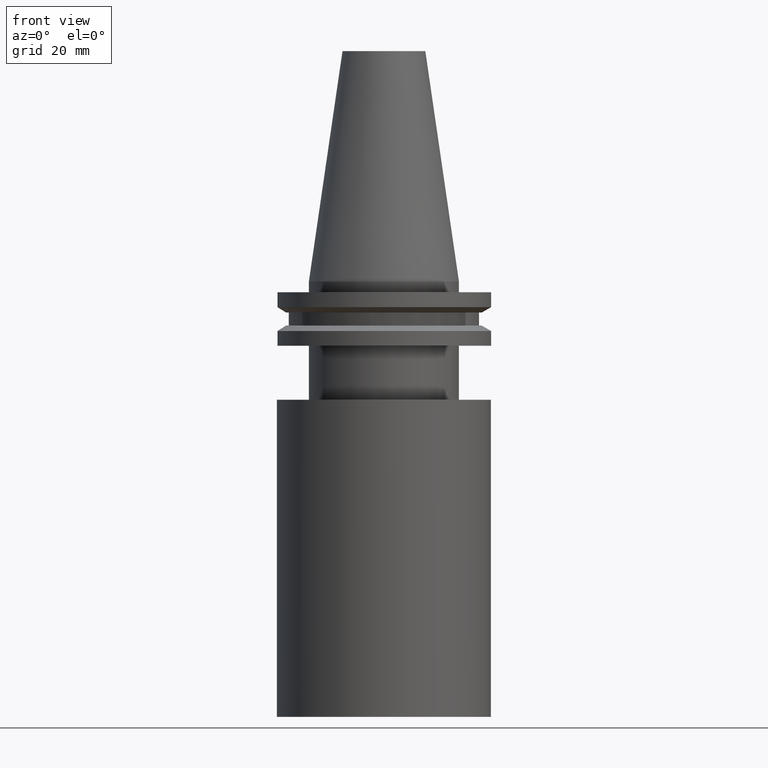
[diagram: clean part render]
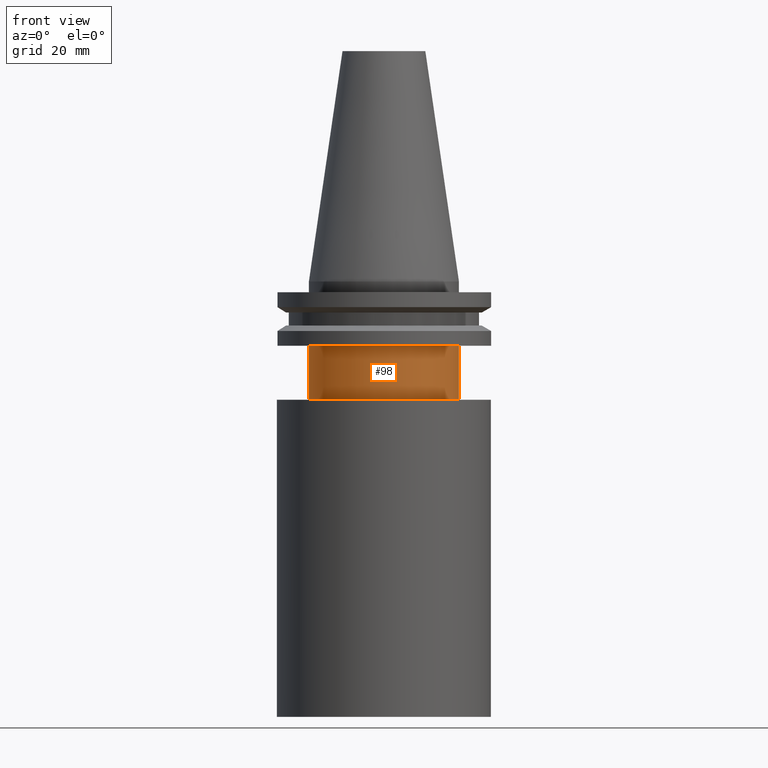
[diagram: same view with one face highlighted and labeled with its STEP entity id]
A machine part, front view. The second image highlights one B-rep face of the part: STEP entity #98.
In plain terms, the highlighted cylindrical surface (bore or boss wall) has radius 22.225 mm, axis along (-0, -0, 1).
Its self-contained STEP definition (entity closure, byte-faithful):
#7 = ORIENTED_EDGE ( 'NONE', *, *, #334, .F. ) ;
#19 = CIRCLE ( 'NONE', #312, 22.22499999999999787 ) ;
#35 = DIRECTION ( 'NONE',  ( -0.000000000000000000, -0.000000000000000000, 1.000000000000000000 ) ) ;
#37 = DIRECTION ( 'NONE',  ( -0.000000000000000000, -0.000000000000000000, 1.000000000000000000 ) ) ;
#49 = CARTESIAN_POINT ( 'NONE',  ( 22.22500000000000142, 0.000000000000000000, -19.04999999999999716 ) ) ;
#64 = CARTESIAN_POINT ( 'NONE',  ( 0.000000000000000000, 0.000000000000000000, 68.25000000000000000 ) ) ;
#67 = FACE_OUTER_BOUND ( 'NONE', #378, .T. ) ;
#71 = ORIENTED_EDGE ( 'NONE', *, *, #177, .T. ) ;
#98 = ADVANCED_FACE ( 'NONE', ( #67, #375 ), #220, .T. ) ;
#100 = CARTESIAN_POINT ( 'NONE',  ( 0.000000000000000000, 0.000000000000000000, -19.04999999999999716 ) ) ;
#125 = CARTESIAN_POINT ( 'NONE',  ( 0.000000000000000000, 0.000000000000000000, -35.04999999999999716 ) ) ;
#126 = CIRCLE ( 'NONE', #379, 22.22500000000000142 ) ;
#148 = VERTEX_POINT ( 'NONE', #49 ) ;
#152 = AXIS2_PLACEMENT_3D ( 'NONE', #64, #35, #162 ) ;
#155 = DIRECTION ( 'NONE',  ( -0.000000000000000000, -0.000000000000000000, 1.000000000000000000 ) ) ;
#162 = DIRECTION ( 'NONE',  ( 1.000000000000000000, 0.000000000000000000, 0.000000000000000000 ) ) ;
#177 = EDGE_CURVE ( 'NONE', #338, #338, #19, .T. ) ;
#184 = DIRECTION ( 'NONE',  ( 1.000000000000000000, 0.000000000000000000, 0.000000000000000000 ) ) ;
#189 = DIRECTION ( 'NONE',  ( 1.000000000000000000, 0.000000000000000000, 0.000000000000000000 ) ) ;
#220 = CYLINDRICAL_SURFACE ( 'NONE', #152, 22.22500000000000142 ) ;
#308 = CARTESIAN_POINT ( 'NONE',  ( 22.22499999999999787, 0.000000000000000000, -35.04999999999999716 ) ) ;
#312 = AXIS2_PLACEMENT_3D ( 'NONE', #125, #155, #184 ) ;
#334 = EDGE_CURVE ( 'NONE', #148, #148, #126, .T. ) ;
#338 = VERTEX_POINT ( 'NONE', #308 ) ;
#342 = EDGE_LOOP ( 'NONE', ( #71 ) ) ;
#375 = FACE_OUTER_BOUND ( 'NONE', #342, .T. ) ;
#378 = EDGE_LOOP ( 'NONE', ( #7 ) ) ;
#379 = AXIS2_PLACEMENT_3D ( 'NONE', #100, #37, #189 ) ;